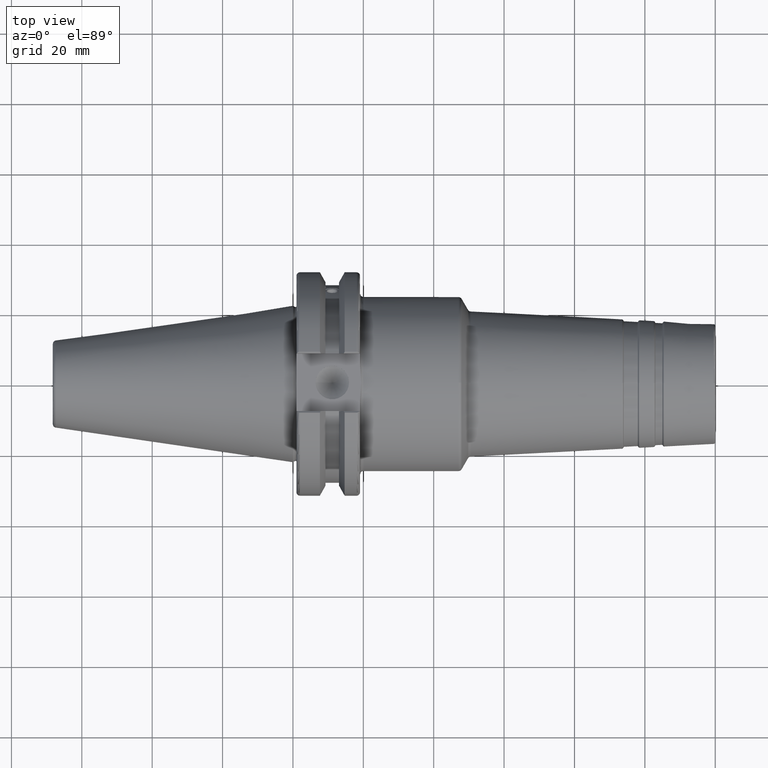
[diagram: clean part render]
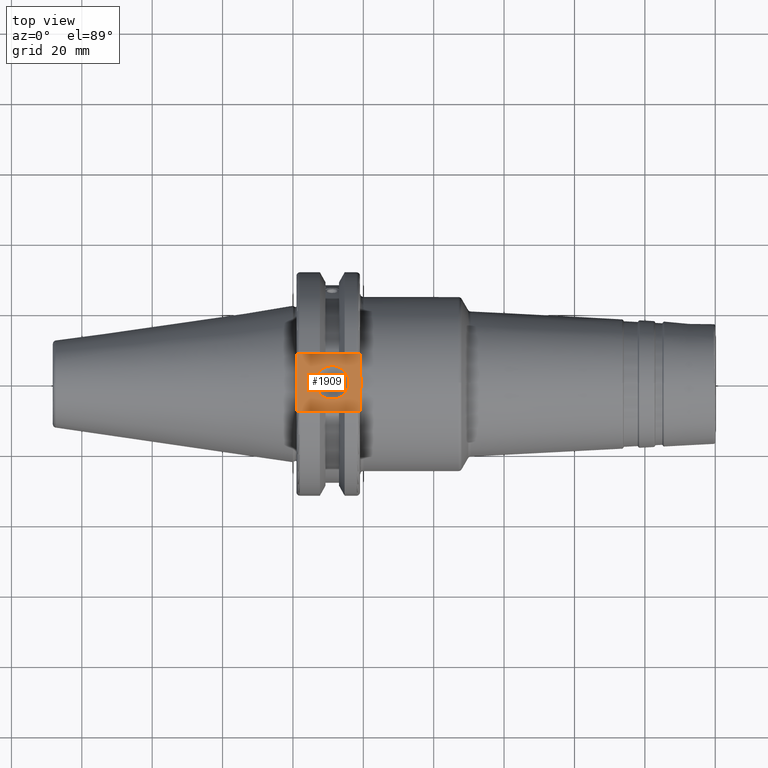
[diagram: same view with one face highlighted and labeled with its STEP entity id]
A machine part, top view. The second image highlights one B-rep face of the part: STEP entity #1909.
In plain terms, the highlighted planar face has unit normal (0, 0, 1).
Its self-contained STEP definition (entity closure, byte-faithful):
#52=B_SPLINE_CURVE_WITH_KNOTS('',3,(#2954,#2955,#2956,#2957,#2958,#2959,
#2960,#2961,#2962,#2963),.UNSPECIFIED.,.F.,.F.,(4,2,2,2,4),(1.28229186042809,
1.47392183654147,1.862003561099,2.25008528565653,2.44171526176991),
 .UNSPECIFIED.);
#129=FACE_BOUND('',#587,.T.);
#162=PLANE('',#2171);
#178=LINE('',#2990,#271);
#190=LINE('',#3113,#283);
#225=LINE('',#3517,#318);
#227=LINE('',#3560,#320);
#238=LINE('',#3622,#331);
#271=VECTOR('',#2378,10.);
#283=VECTOR('',#2430,10.);
#318=VECTOR('',#2615,10.);
#320=VECTOR('',#2625,10.);
#331=VECTOR('',#2646,10.);
#468=FACE_OUTER_BOUND('',#586,.T.);
#586=EDGE_LOOP('',(#1737,#1738,#1739,#1740,#1741,#1742));
#587=EDGE_LOOP('',(#1743));
#714=CIRCLE('',#2162,4.7625);
#777=VERTEX_POINT('',#2952);
#778=VERTEX_POINT('',#2953);
#781=VERTEX_POINT('',#2989);
#800=VERTEX_POINT('',#3111);
#877=VERTEX_POINT('',#3515);
#883=VERTEX_POINT('',#3559);
#914=VERTEX_POINT('',#3718);
#992=EDGE_CURVE('',#777,#778,#52,.F.);
#997=EDGE_CURVE('',#777,#781,#178,.T.);
#1024=EDGE_CURVE('',#800,#778,#190,.T.);
#1130=EDGE_CURVE('',#800,#877,#225,.T.);
#1138=EDGE_CURVE('',#883,#781,#227,.T.);
#1157=EDGE_CURVE('',#883,#877,#238,.T.);
#1191=EDGE_CURVE('',#914,#914,#714,.T.);
#1737=ORIENTED_EDGE('',*,*,#1024,.F.);
#1738=ORIENTED_EDGE('',*,*,#1130,.T.);
#1739=ORIENTED_EDGE('',*,*,#1157,.F.);
#1740=ORIENTED_EDGE('',*,*,#1138,.T.);
#1741=ORIENTED_EDGE('',*,*,#997,.F.);
#1742=ORIENTED_EDGE('',*,*,#992,.T.);
#1743=ORIENTED_EDGE('',*,*,#1191,.T.);
#1909=ADVANCED_FACE('',(#468,#129),#162,.T.);
#2162=AXIS2_PLACEMENT_3D('',#3719,#2718,#2719);
#2171=AXIS2_PLACEMENT_3D('',#3738,#2738,#2739);
#2378=DIRECTION('',(0.,-1.,0.));
#2430=DIRECTION('',(0.,-1.,0.));
#2615=DIRECTION('',(-1.,0.,0.));
#2625=DIRECTION('',(1.,-1.16558847729675E-16,0.));
#2646=DIRECTION('',(0.,1.,0.));
#2718=DIRECTION('center_axis',(0.,0.,-1.));
#2719=DIRECTION('ref_axis',(1.,0.,0.));
#2738=DIRECTION('center_axis',(0.,0.,1.));
#2739=DIRECTION('ref_axis',(1.,0.,0.));
#2952=CARTESIAN_POINT('',(19.05,-6.16948133962652,25.));
#2953=CARTESIAN_POINT('',(19.05,6.16948133962652,25.));
#2954=CARTESIAN_POINT('Ctrl Pts',(19.05,6.16948133962652,25.));
#2955=CARTESIAN_POINT('Ctrl Pts',(19.05,5.53071475258193,25.));
#2956=CARTESIAN_POINT('Ctrl Pts',(19.0917093675371,4.76533047486055,25.));
#2957=CARTESIAN_POINT('Ctrl Pts',(19.2334466867335,2.83816328553263,25.));
#2958=CARTESIAN_POINT('Ctrl Pts',(19.3885621722339,1.29360574852511,25.));
#2959=CARTESIAN_POINT('Ctrl Pts',(19.3885621722339,-1.29360574852511,25.));
#2960=CARTESIAN_POINT('Ctrl Pts',(19.2334466867335,-2.83816328553263,25.));
#2961=CARTESIAN_POINT('Ctrl Pts',(19.0917093675371,-4.76533047486055,25.));
#2962=CARTESIAN_POINT('Ctrl Pts',(19.05,-5.53071475258193,25.));
#2963=CARTESIAN_POINT('Ctrl Pts',(19.05,-6.16948133962652,25.));
#2989=CARTESIAN_POINT('',(19.05,-8.19,25.));
#2990=CARTESIAN_POINT('',(19.05,0.,25.));
#3111=CARTESIAN_POINT('',(19.05,8.19,25.));
#3113=CARTESIAN_POINT('',(19.05,0.,25.));
#3515=CARTESIAN_POINT('',(1.,8.19,25.));
#3517=CARTESIAN_POINT('',(20.05,8.19,25.));
#3559=CARTESIAN_POINT('',(1.,-8.19,25.));
#3560=CARTESIAN_POINT('',(1.,-8.19,25.));
#3622=CARTESIAN_POINT('',(1.,15.875,25.));
#3718=CARTESIAN_POINT('',(6.4135,-5.83238038093927E-16,25.));
#3719=CARTESIAN_POINT('Origin',(11.176,0.,25.));
#3738=CARTESIAN_POINT('Origin',(14.62,0.,25.));